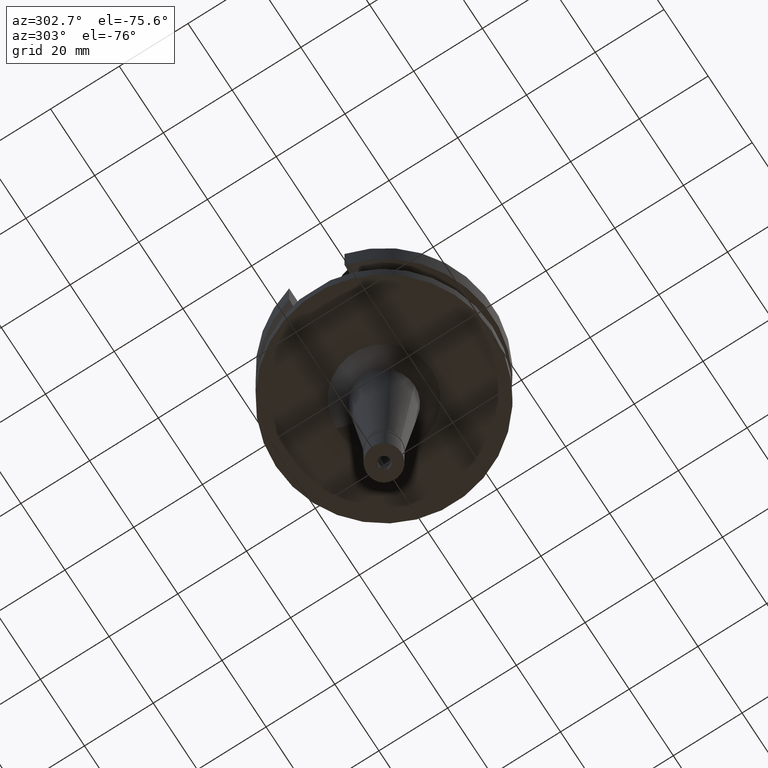
[diagram: clean part render]
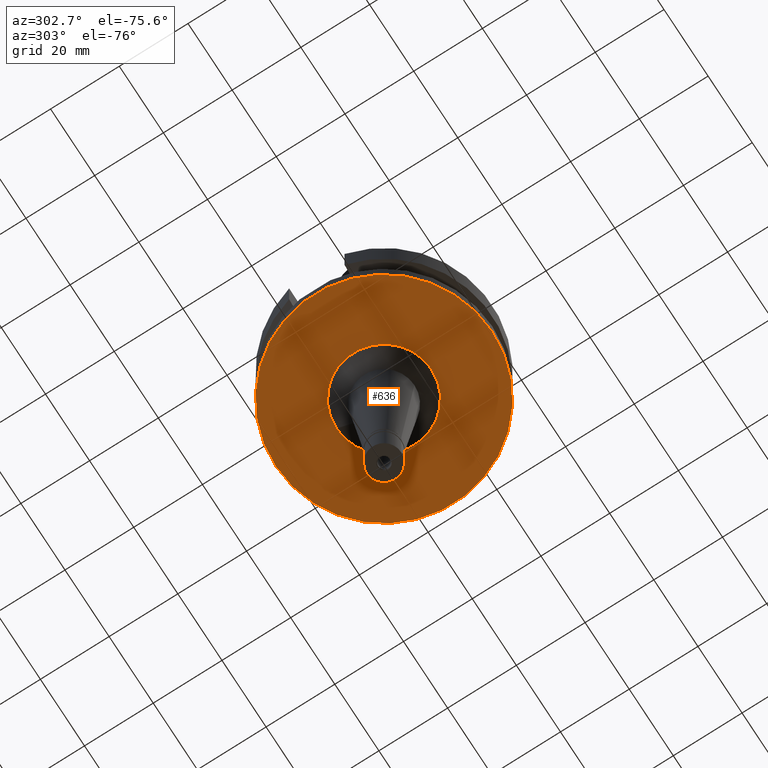
[diagram: same view with one face highlighted and labeled with its STEP entity id]
A machine part, auxiliary view. The second image highlights one B-rep face of the part: STEP entity #636.
In plain terms, the highlighted planar face has unit normal (0, 0, -1).
Its self-contained STEP definition (entity closure, byte-faithful):
#198 = ORIENTED_EDGE ( 'NONE', *, *, #2435, .F. ) ;
#243 = VERTEX_POINT ( 'NONE', #727 ) ;
#247 = DIRECTION ( 'NONE',  ( 0.0000000000000000000, 0.0000000000000000000, 1.000000000000000000 ) ) ;
#385 = EDGE_CURVE ( 'NONE', #243, #2664, #1605, .T. ) ;
#395 = DIRECTION ( 'NONE',  ( 0.0000000000000000000, -1.000000000000000000, 0.0000000000000000000 ) ) ;
#482 = DIRECTION ( 'NONE',  ( 0.0000000000000000000, 1.000000000000000000, 0.0000000000000000000 ) ) ;
#505 = AXIS2_PLACEMENT_3D ( 'NONE', #591, #2487, #2264 ) ;
#591 = CARTESIAN_POINT ( 'NONE',  ( 0.0000000000000000000, 0.0000000000000000000, -27.00000000000000000 ) ) ;
#636 = ADVANCED_FACE ( 'NONE', ( #1211, #2395 ), #2731, .T. ) ;
#651 = AXIS2_PLACEMENT_3D ( 'NONE', #1962, #1025, #828 ) ;
#727 = CARTESIAN_POINT ( 'NONE',  ( 0.0000000000000000000, 13.84950119514000022, -27.00000000000000000 ) ) ;
#756 = AXIS2_PLACEMENT_3D ( 'NONE', #1278, #2255, #395 ) ;
#772 = DIRECTION ( 'NONE',  ( 0.0000000000000000000, 0.0000000000000000000, -1.000000000000000000 ) ) ;
#774 = EDGE_CURVE ( 'NONE', #2266, #2031, #1172, .T. ) ;
#826 = CARTESIAN_POINT ( 'NONE',  ( 0.0000000000000000000, 31.50000000000000000, -27.00000000000000000 ) ) ;
#828 = DIRECTION ( 'NONE',  ( 0.0000000000000000000, 1.000000000000000000, 0.0000000000000000000 ) ) ;
#999 = ORIENTED_EDGE ( 'NONE', *, *, #774, .F. ) ;
#1007 = CARTESIAN_POINT ( 'NONE',  ( 0.0000000000000000000, 0.0000000000000000000, -27.00000000000000000 ) ) ;
#1025 = DIRECTION ( 'NONE',  ( 0.0000000000000000000, 0.0000000000000000000, -1.000000000000000000 ) ) ;
#1167 = CARTESIAN_POINT ( 'NONE',  ( 0.0000000000000000000, 2.118455265505000055E-14, -27.00000000000000000 ) ) ;
#1172 = CIRCLE ( 'NONE', #1215, 31.50000000000000000 ) ;
#1188 = CARTESIAN_POINT ( 'NONE',  ( 0.0000000000000000000, -13.84950119514000022, -27.00000000000000000 ) ) ;
#1211 = FACE_OUTER_BOUND ( 'NONE', #1863, .T. ) ;
#1215 = AXIS2_PLACEMENT_3D ( 'NONE', #1167, #247, #482 ) ;
#1278 = CARTESIAN_POINT ( 'NONE',  ( 0.0000000000000000000, 2.118455265505000055E-14, -27.00000000000000000 ) ) ;
#1353 = ORIENTED_EDGE ( 'NONE', *, *, #2895, .F. ) ;
#1605 = CIRCLE ( 'NONE', #651, 13.84950119514000022 ) ;
#1681 = DIRECTION ( 'NONE',  ( 0.0000000000000000000, -1.000000000000000000, 0.0000000000000000000 ) ) ;
#1707 = CIRCLE ( 'NONE', #756, 31.50000000000000000 ) ;
#1863 = EDGE_LOOP ( 'NONE', ( #999, #198 ) ) ;
#1951 = ORIENTED_EDGE ( 'NONE', *, *, #385, .F. ) ;
#1962 = CARTESIAN_POINT ( 'NONE',  ( 0.0000000000000000000, 0.0000000000000000000, -27.00000000000000000 ) ) ;
#1987 = EDGE_LOOP ( 'NONE', ( #1951, #1353 ) ) ;
#2031 = VERTEX_POINT ( 'NONE', #2741 ) ;
#2255 = DIRECTION ( 'NONE',  ( 0.0000000000000000000, 0.0000000000000000000, 1.000000000000000000 ) ) ;
#2264 = DIRECTION ( 'NONE',  ( 0.0000000000000000000, -1.000000000000000000, 0.0000000000000000000 ) ) ;
#2266 = VERTEX_POINT ( 'NONE', #826 ) ;
#2395 = FACE_BOUND ( 'NONE', #1987, .T. ) ;
#2435 = EDGE_CURVE ( 'NONE', #2031, #2266, #1707, .T. ) ;
#2487 = DIRECTION ( 'NONE',  ( 0.0000000000000000000, 0.0000000000000000000, -1.000000000000000000 ) ) ;
#2507 = CIRCLE ( 'NONE', #2565, 13.84950119514000022 ) ;
#2565 = AXIS2_PLACEMENT_3D ( 'NONE', #1007, #772, #1681 ) ;
#2664 = VERTEX_POINT ( 'NONE', #1188 ) ;
#2731 = PLANE ( 'NONE',  #505 ) ;
#2741 = CARTESIAN_POINT ( 'NONE',  ( 0.0000000000000000000, -31.50000000000000000, -27.00000000000000000 ) ) ;
#2895 = EDGE_CURVE ( 'NONE', #2664, #243, #2507, .T. ) ;